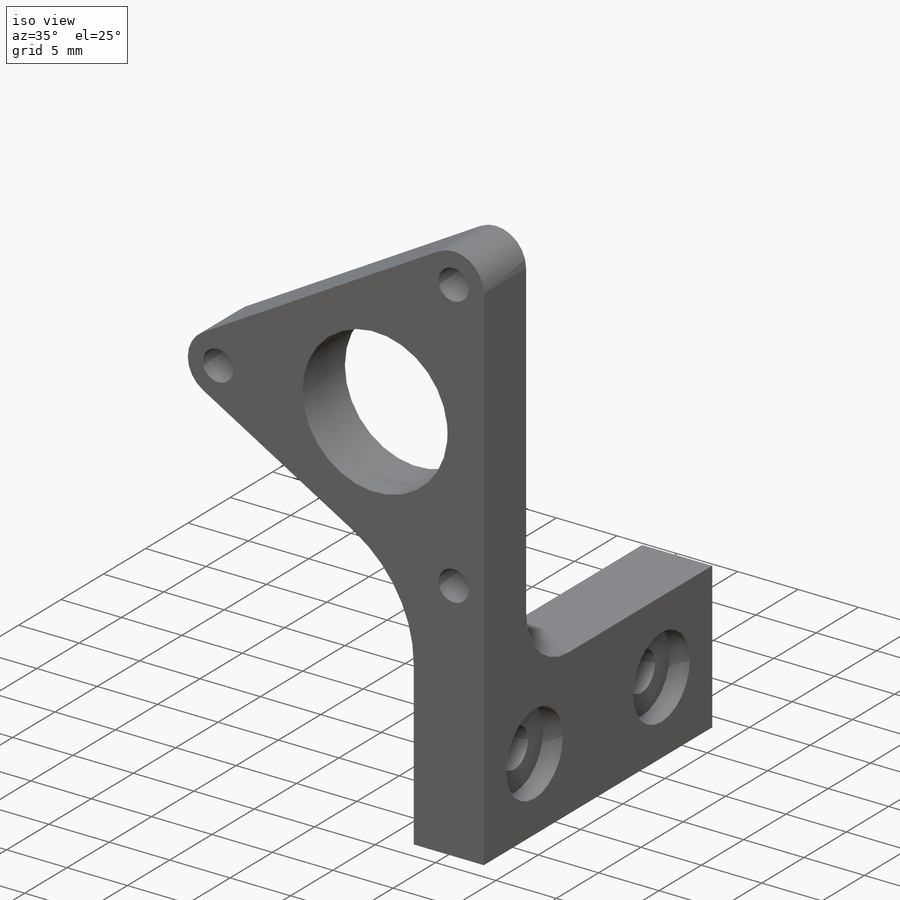
[diagram: iso view]
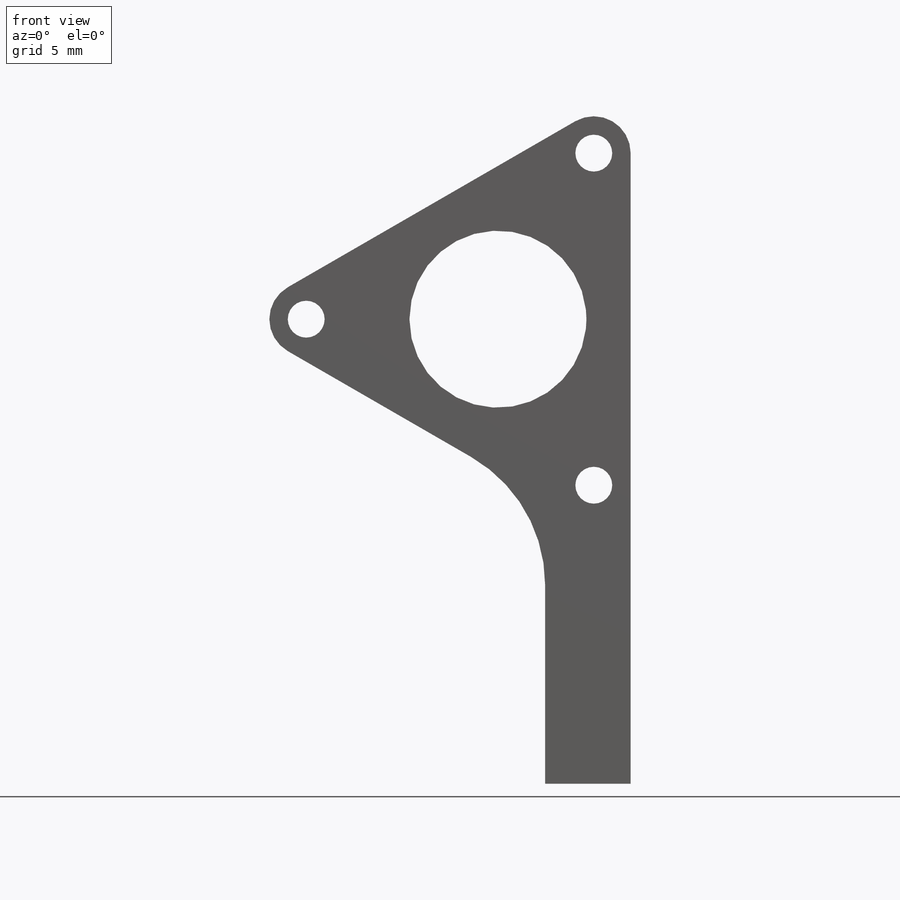
[diagram: front view]
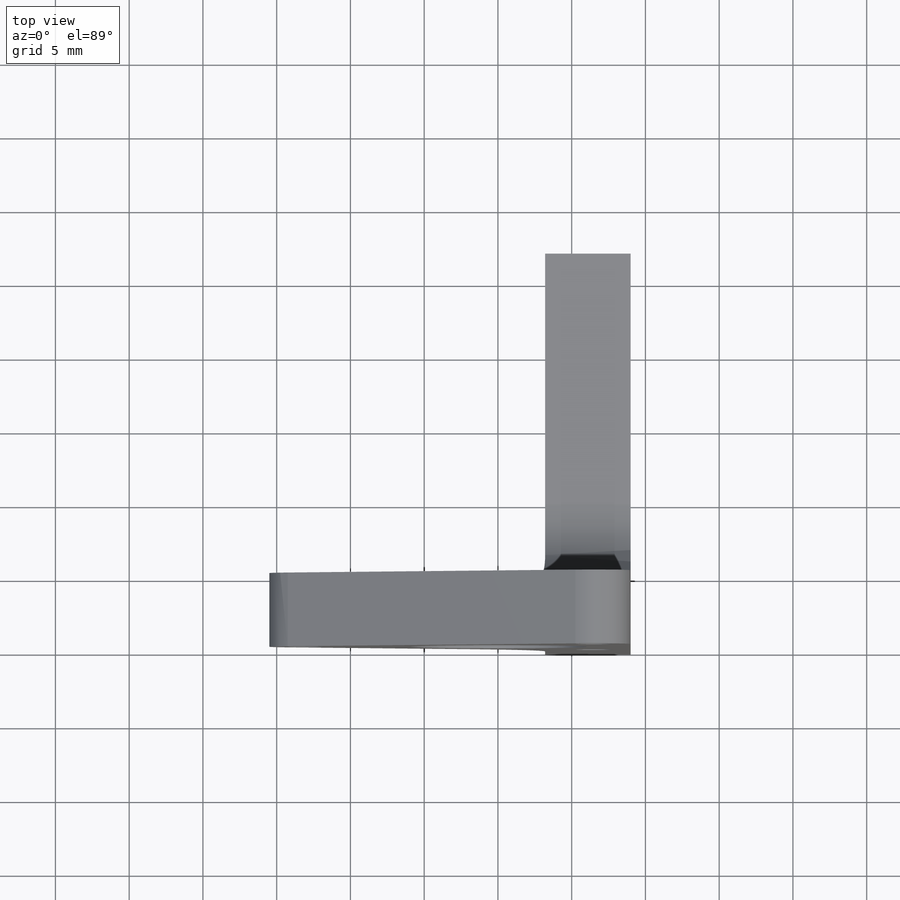
[diagram: top view]
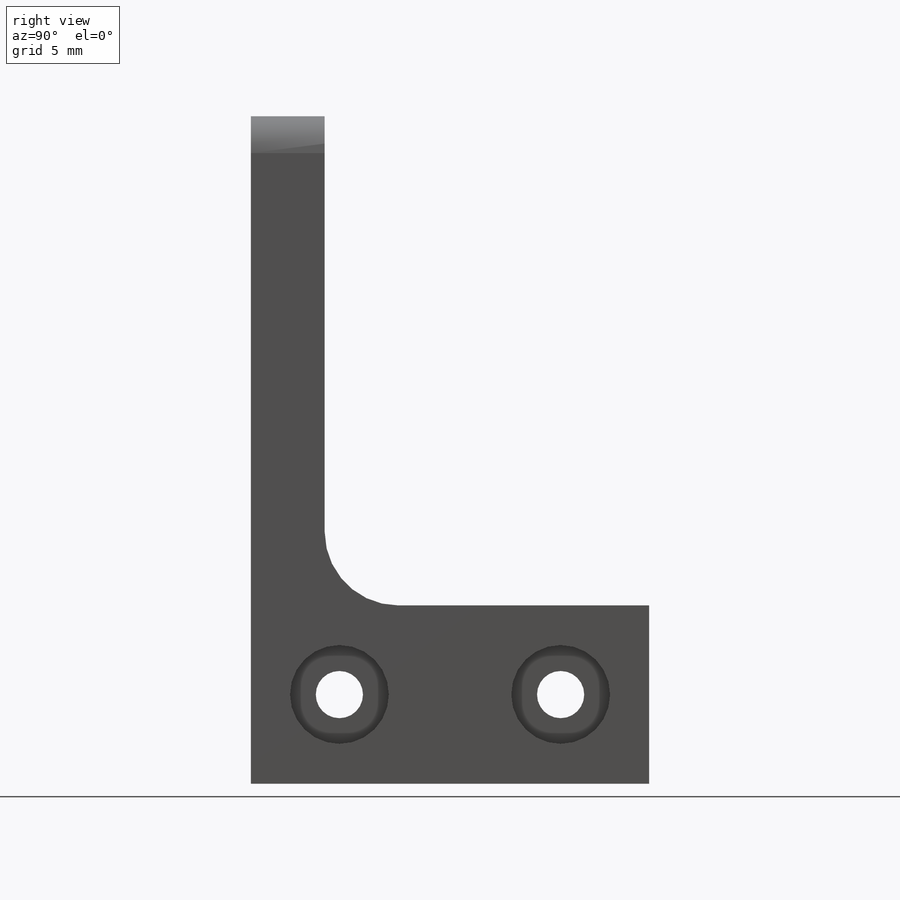
[diagram: right view]
SOLIDWORKS PART (.sldprt)
format: sldprt  version: not decoded by parser v0  size: 226,304 bytes
history: native  units: mm
features: sketch x5, plane x3, extrude x2, material x1, hole x1, fillet x1 (+9 scaffold rows collapsed)
feature tree (22):
  scaffold x9  (default folders/planes/origin — collapsed)
  material  "Material <não especificado>"
  plane  "Plano frontal"
  plane  "Plano superior"
  plane  "Plano direito"
  sketch  "Esboço1"  dims[c1.D1=12.0mm c1.D5=2.5mm c1.D6=5.0mm c1.D10=10.0mm c1.D2=~8.536889mm c2.D2=120.0deg c2.D3=~10.752732mm c3.D3=120.0deg c3.D4=13.0mm c3.D7=8.15mm c3.D8=3.3mm c3.D9=12.09mm]
  extrude  "Ressalto-extrusão1"  Depth=5mm
  sketch  "Esboço2"  dims[D1=12.09mm]
  extrude  "Ressalto-extrusão2"  Depth=22mm
  sketch  "Esboço3"  dims[D3=3.0mm D1=6.0mm D2=6.0mm]
  hole  "Rebaixo para SBHCS M31"  Diameter=3.2mm Depth=5.8mm
  sketch  "Esboço5"
  sketch  "Esboço6"  dims[hole-wizard template sketch: 42 standard entries collapsed; hole parameters kept: c12.Thru Hole Depth=5.8mm c12.C'Bore Dia.=6.7mm c12.C'Bore Depth=1.65mm]
  fillet  "Filete1"  Radius=5mm
decode coverage: 8 of 9 modeling features carry decoded parameters
note: ~ marks probable driven/reference dimensions
note: suppression state not decoded; provenance and decode notes live in map.json
